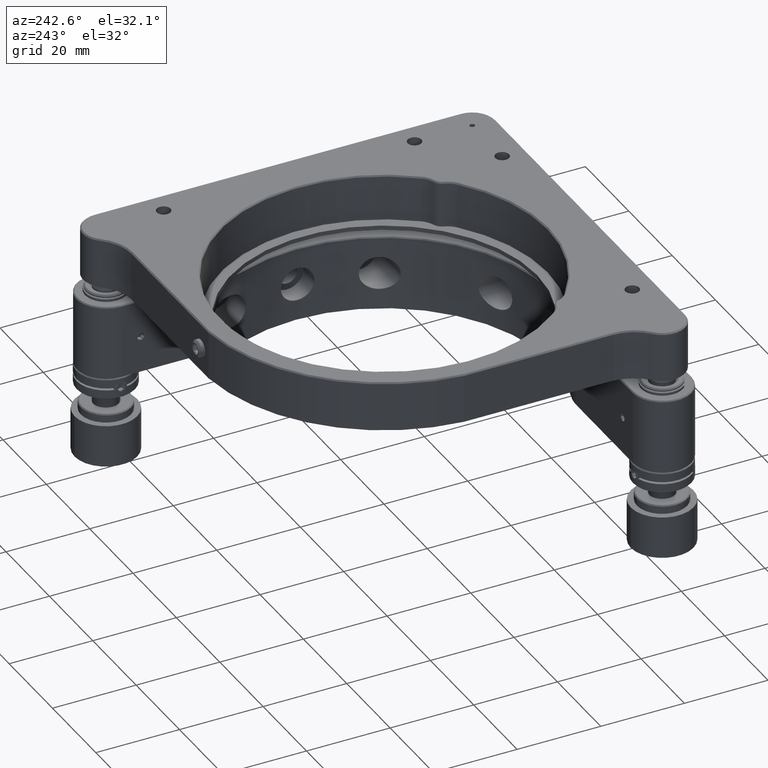
[diagram: clean part render]
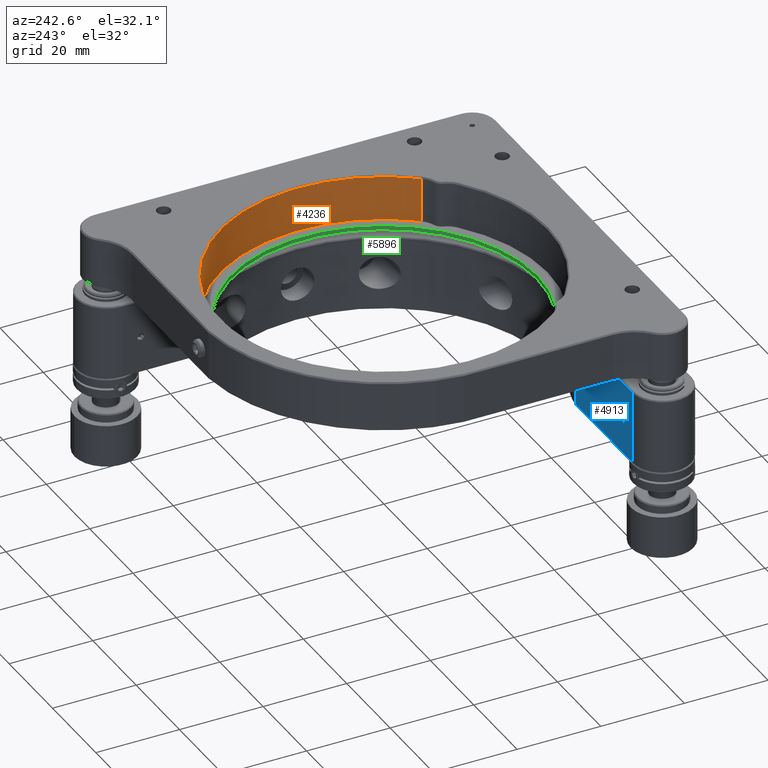
[diagram: same view with three faces highlighted in distinct colors, each labeled with its STEP entity id]
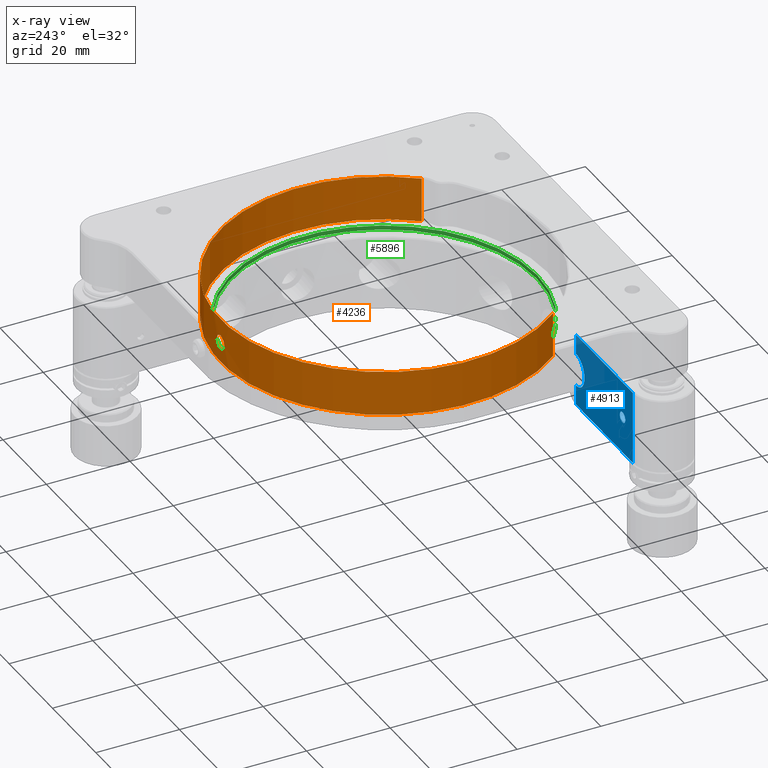
[diagram: x-ray of the same camera — body ghosted, the three highlighted faces saturated]
A machine part, auxiliary view with three faces highlighted in distinct colors.
The next image is the same camera in x-ray (body ghosted, the three faces saturated) — at least one of them is partly hidden behind the body in this view.
Their STEP definitions:

[orange] entity #4236 — the highlighted cylindrical surface (partial cylindrical patch) has radius 39.1 mm, axis along (0, -0, 1).
#164 = CARTESIAN_POINT ( 'NONE',  ( -1.090652803813126903, 39.08485988291836577, 20.23808376425229838 ) ) ;
#285 = CARTESIAN_POINT ( 'NONE',  ( 1.432023778977849382, 39.07381315439676683, 19.82193987471746155 ) ) ;
#418 = CARTESIAN_POINT ( 'NONE',  ( -1.639382301651451490, 39.06562259217468380, 18.77949631593761737 ) ) ;
#498 = EDGE_LOOP ( 'NONE', ( #5788, #20134, #4430, #11637 ) ) ;
#681 = CARTESIAN_POINT ( 'NONE',  ( 1.005747798732938403, 39.08716562293366081, 17.68280473272272246 ) ) ;
#1827 = AXIS2_PLACEMENT_3D ( 'NONE', #10360, #18515, #7836 ) ;
#2084 = DIRECTION ( 'NONE',  ( -1.137208903880104210E-16, 1.216571513026822848E-16, -1.000000000000000000 ) ) ;
#2165 = CARTESIAN_POINT ( 'NONE',  ( -1.597330593818252487, 39.06736461318129727, 18.56787934288382047 ) ) ;
#2249 = DIRECTION ( 'NONE',  ( 0.000000000000000000, -1.000000000000000000, -1.330989879266092409E-16 ) ) ;
#2422 = CARTESIAN_POINT ( 'NONE',  ( 1.483657054332974568, 39.07186286846511081, 19.72531056223667889 ) ) ;
#2548 = CARTESIAN_POINT ( 'NONE',  ( 0.7316481024828955793, 39.09328169242677831, 17.51241752772209281 ) ) ;
#2685 = CARTESIAN_POINT ( 'NONE',  ( 1.649852990802961550, 39.06517611799898759, 18.77894124580774360 ) ) ;
#2810 = VERTEX_POINT ( 'NONE', #13355 ) ;
#3832 = FACE_OUTER_BOUND ( 'NONE', #498, .T. ) ;
#4236 = ADVANCED_FACE ( 'NONE', ( #3832, #26119 ), #7963, .F. ) ;
#4292 = CARTESIAN_POINT ( 'NONE',  ( 0.8285636878634248248, 39.09132208010111498, 20.42620119362159414 ) ) ;
#4424 = CARTESIAN_POINT ( 'NONE',  ( 1.090628508497733629, 39.08486221933237204, 20.23821602182935564 ) ) ;
#4430 = ORIENTED_EDGE ( 'NONE', *, *, #24515, .F. ) ;
#4553 = CARTESIAN_POINT ( 'NONE',  ( -1.318937729075137621, 39.07804480382964840, 20.00979039005804694 ) ) ;
#4682 = CARTESIAN_POINT ( 'NONE',  ( -1.432023986924321868, 39.07381314669292749, 18.16862324067536960 ) ) ;
#5709 = LINE ( 'NONE', #20127, #22786 ) ;
#5788 = ORIENTED_EDGE ( 'NONE', *, *, #14563, .F. ) ;
#6176 = CARTESIAN_POINT ( 'NONE',  ( 1.312656535352403564, 39.07800531435126601, 20.00076096138525372 ) ) ;
#6303 = CARTESIAN_POINT ( 'NONE',  ( 0.1090096951036686329, 39.10000000000005826, 17.34528137423862049 ) ) ;
#6436 = CARTESIAN_POINT ( 'NONE',  ( 1.090652290418602455, 39.08485989737668120, 17.75247852893095413 ) ) ;
#6567 = CARTESIAN_POINT ( 'NONE',  ( -1.650072930156035289, 39.06516682839784238, 18.88879757512160396 ) ) ;
#6692 = CARTESIAN_POINT ( 'NONE',  ( -1.566208250513628109, 39.06864085145169696, 18.46502429098294584 ) ) ;
#7315 = B_SPLINE_CURVE_WITH_KNOTS ( 'NONE', 3,
 ( #16445, #6303, #10313, #14447, #20989, #2548, #16319, #681, #6436, #24584, #22714, #24716, #2685, #10838, #22587, #10570, #12568, #2422, #285, #6176, #18594, #4424, #20728, #4292, #12434, #18988, #8696, #20591, #14575, #16837, #20463, #10441, #18720, #8429, #164, #4553, #24980, #24461, #22976, #6567, #418, #2165, #6692, #16706, #4682, #16570, #14321, #8563, #24845, #10703, #14709, #22845, #12694, #14841 ),
 .UNSPECIFIED., .T., .F.,
 ( 4, 2, 2, 2, 2, 2, 2, 2, 2, 2, 2, 2, 2, 2, 2, 2, 2, 2, 2, 2, 2, 2, 2, 2, 2, 2, 4 ),
 ( 0.000000000000000000, 0.0003223846055380403869, 0.0006447692110760807737, 0.0009671538166141211606, 0.001289538422152161547, 0.001934307633228249043, 0.002579076844304336539, 0.002901461449842375299, 0.003223846055380414494, 0.003546230660918452821, 0.003868615266456491147, 0.004190999871994529474, 0.004513384477532568669, 0.005158153688608644455, 0.005480538294146683649, 0.005802922899684721976, 0.006125307505222759435, 0.006447692110760797762, 0.007092461321836874416, 0.007737230532912951070, 0.008059615138450989397, 0.008381999743989025989, 0.008704384349527064316, 0.009026768955065102643, 0.009349153560603140969, 0.009671538166141179296, 0.01031630737721725075 ),
 .UNSPECIFIED. ) ;
#7618 = CIRCLE ( 'NONE', #21266, 39.10000000000000142 ) ;
#7692 = CARTESIAN_POINT ( 'NONE',  ( 30.28482855053507095, -24.73133962535577979, -97.59621920333742651 ) ) ;
#7836 = DIRECTION ( 'NONE',  ( 0.000000000000000000, -1.000000000000000000, 0.000000000000000000 ) ) ;
#7963 = CYLINDRICAL_SURFACE ( 'NONE', #1827, 39.10000000000000142 ) ;
#8107 = VERTEX_POINT ( 'NONE', #18302 ) ;
#8429 = CARTESIAN_POINT ( 'NONE',  ( -1.005748386169342146, 39.08716560766049497, 20.30775756163237133 ) ) ;
#8563 = CARTESIAN_POINT ( 'NONE',  ( -1.090629031199502830, 39.08486220460459748, 17.75234719056131283 ) ) ;
#8696 = CARTESIAN_POINT ( 'NONE',  ( 0.2180179785798793957, 39.10000000711768564, 20.64528154290496431 ) ) ;
#9304 = VERTEX_POINT ( 'NONE', #13514 ) ;
#9483 = VERTEX_POINT ( 'NONE', #22688 ) ;
#10313 = CARTESIAN_POINT ( 'NONE',  ( 0.2161955159857403552, 39.09954446272902828, 17.35597800453118111 ) ) ;
#10360 = CARTESIAN_POINT ( 'NONE',  ( -9.961649663784587535E-15, 5.657141978799781164E-14, -97.59621920333742651 ) ) ;
#10441 = CARTESIAN_POINT ( 'NONE',  ( -0.7316489007202362505, 39.09328167728526893, 20.47814482253841817 ) ) ;
#10570 = CARTESIAN_POINT ( 'NONE',  ( 1.597330542835530220, 39.06736461527667359, 19.42268360918544801 ) ) ;
#10703 = CARTESIAN_POINT ( 'NONE',  ( -0.8285644144949129153, 39.09132206453286784, 17.56436197963191148 ) ) ;
#10838 = CARTESIAN_POINT ( 'NONE',  ( 1.650072930191804677, 39.06516682839631471, 19.10176522585928538 ) ) ;
#11260 = AXIS2_PLACEMENT_3D ( 'NONE', #16024, #18284, #2249 ) ;
#11637 = ORIENTED_EDGE ( 'NONE', *, *, #19659, .F. ) ;
#12434 = CARTESIAN_POINT ( 'NONE',  ( 0.7321883344140754923, 39.09327169993473206, 20.47788336941540877 ) ) ;
#12568 = CARTESIAN_POINT ( 'NONE',  ( 1.566208169825757501, 39.06864085472881243, 19.52553870702351446 ) ) ;
#12694 = CARTESIAN_POINT ( 'NONE',  ( -0.2180193902073069012, 39.10000000000004405, 17.34528137423860628 ) ) ;
#13355 = CARTESIAN_POINT ( 'NONE',  ( 9.004883412442314032E-15, 39.10000000000004405, 17.34528137423862049 ) ) ;
#13514 = CARTESIAN_POINT ( 'NONE',  ( 30.28482855053508516, -24.73133962535578689, 24.69528137423851533 ) ) ;
#14321 = CARTESIAN_POINT ( 'NONE',  ( -1.244511494963802534, 39.08026504996515627, 17.90645255043218853 ) ) ;
#14447 = CARTESIAN_POINT ( 'NONE',  ( 0.4270693338964202668, 39.09780977852980044, 17.39788730165922814 ) ) ;
#14563 = EDGE_CURVE ( 'NONE', #23699, #9304, #7618, .T. ) ;
#14575 = CARTESIAN_POINT ( 'NONE',  ( -0.2161966598196375100, 39.09954445623314001, 20.63458458978301380 ) ) ;
#14709 = CARTESIAN_POINT ( 'NONE',  ( -0.7321891463711474035, 39.09327168455912016, 17.51267978336384346 ) ) ;
#14841 = CARTESIAN_POINT ( 'NONE',  ( 8.836247705756861137E-15, 39.10000000000005116, 17.34528137423861693 ) ) ;
#15836 = DIRECTION ( 'NONE',  ( -1.137208903880104210E-16, 1.216571513026822848E-16, -1.000000000000000000 ) ) ;
#16024 = CARTESIAN_POINT ( 'NONE',  ( 2.728635141631537692E-15, 4.299551571813828762E-14, 13.99528137423859597 ) ) ;
#16319 = CARTESIAN_POINT ( 'NONE',  ( 0.8264084201780731442, 39.09136853823824254, 17.56308980456655178 ) ) ;
#16445 = CARTESIAN_POINT ( 'NONE',  ( 8.836247705756861137E-15, 39.10000000000005116, 17.34528137423861693 ) ) ;
#16570 = CARTESIAN_POINT ( 'NONE',  ( -1.312656851573832162, 39.07800530364638547, 17.98980220541950459 ) ) ;
#16706 = CARTESIAN_POINT ( 'NONE',  ( -1.483657215311926958, 39.07186286230987804, 18.26525252153988177 ) ) ;
#16837 = CARTESIAN_POINT ( 'NONE',  ( -0.4270703507123395082, 39.09780976725180324, 20.59267517157032401 ) ) ;
#17250 = ORIENTED_EDGE ( 'NONE', *, *, #17597, .F. ) ;
#17597 = EDGE_CURVE ( 'NONE', #2810, #2810, #7315, .T. ) ;
#17626 = EDGE_LOOP ( 'NONE', ( #17250 ) ) ;
#17797 = DIRECTION ( 'NONE',  ( -1.137208903880104210E-16, 1.216571513026822848E-16, -1.000000000000000000 ) ) ;
#18284 = DIRECTION ( 'NONE',  ( 1.137208903880104210E-16, -1.216571513026822848E-16, 1.000000000000000000 ) ) ;
#18302 = CARTESIAN_POINT ( 'NONE',  ( -30.28482855053508516, -24.73133962535577979, 13.99528137423860308 ) ) ;
#18515 = DIRECTION ( 'NONE',  ( 1.137208903880104210E-16, -1.216571513026822848E-16, 1.000000000000000000 ) ) ;
#18594 = CARTESIAN_POINT ( 'NONE',  ( 1.244511116689074104, 39.08026506215356477, 20.08411063641282368 ) ) ;
#18720 = CARTESIAN_POINT ( 'NONE',  ( -0.8264091452717302611, 39.09136852275153728, 20.42747252187538720 ) ) ;
#18817 = VECTOR ( 'NONE', #15836, 1000.000000000000000 ) ;
#18988 = CARTESIAN_POINT ( 'NONE',  ( 0.4323481356334845649, 39.09812070851333488, 20.60226887332855483 ) ) ;
#19364 = CIRCLE ( 'NONE', #11260, 39.10000000000000142 ) ;
#19659 = EDGE_CURVE ( 'NONE', #9304, #9483, #25979, .T. ) ;
#19807 = CARTESIAN_POINT ( 'NONE',  ( 3.945448668783242489E-15, 4.169378419919960010E-14, 24.69528137423852954 ) ) ;
#20127 = CARTESIAN_POINT ( 'NONE',  ( -30.28482855053508871, -24.73133962535578334, 6.924213562373124020 ) ) ;
#20134 = ORIENTED_EDGE ( 'NONE', *, *, #25437, .T. ) ;
#20463 = CARTESIAN_POINT ( 'NONE',  ( -0.5318509277423573156, 39.09651029189373617, 20.56095334208127312 ) ) ;
#20591 = CARTESIAN_POINT ( 'NONE',  ( -0.1090109040310884014, 39.09999999644120550, 20.64528128990468403 ) ) ;
#20728 = CARTESIAN_POINT ( 'NONE',  ( 1.007173403542908297, 39.08712807933378741, 20.30663603623691316 ) ) ;
#20989 = CARTESIAN_POINT ( 'NONE',  ( 0.5318499712658928402, 39.09651030510732994, 17.42960907735236020 ) ) ;
#21266 = AXIS2_PLACEMENT_3D ( 'NONE', #19807, #17797, #23938 ) ;
#22587 = CARTESIAN_POINT ( 'NONE',  ( 1.639382291081294740, 39.06562259262912562, 19.21106653870048575 ) ) ;
#22688 = CARTESIAN_POINT ( 'NONE',  ( 30.28482855053508516, -24.73133962535579400, 13.99528137423859597 ) ) ;
#22714 = CARTESIAN_POINT ( 'NONE',  ( 1.441869888074814199, 39.07349224315100145, 18.16480460196883584 ) ) ;
#22786 = VECTOR ( 'NONE', #2084, 1000.000000000000000 ) ;
#22845 = CARTESIAN_POINT ( 'NONE',  ( -0.4323491450478461617, 39.09812069667837164, 17.38829415895373742 ) ) ;
#22976 = CARTESIAN_POINT ( 'NONE',  ( -1.649852990874443481, 39.06517611799598910, 19.21162139766306254 ) ) ;
#23699 = VERTEX_POINT ( 'NONE', #25284 ) ;
#23938 = DIRECTION ( 'NONE',  ( 0.000000000000000000, -1.000000000000000000, -8.873265861773948569E-17 ) ) ;
#24461 = CARTESIAN_POINT ( 'NONE',  ( -1.606485114935409575, 39.06707040990335855, 19.42873953116341568 ) ) ;
#24515 = EDGE_CURVE ( 'NONE', #9483, #8107, #19364, .T. ) ;
#24584 = CARTESIAN_POINT ( 'NONE',  ( 1.318937419265191480, 39.07804481481498016, 17.98077193235910443 ) ) ;
#24716 = CARTESIAN_POINT ( 'NONE',  ( 1.606485072495432487, 39.06707041181316953, 18.56182300799583018 ) ) ;
#24845 = CARTESIAN_POINT ( 'NONE',  ( -1.007173984102293085, 39.08712806420741970, 17.68392716252600039 ) ) ;
#24980 = CARTESIAN_POINT ( 'NONE',  ( -1.441870086588277200, 39.07349223566096441, 19.82575777469536149 ) ) ;
#25284 = CARTESIAN_POINT ( 'NONE',  ( -30.28482855054568645, -24.73133962535725061, 24.69528137424129000 ) ) ;
#25437 = EDGE_CURVE ( 'NONE', #23699, #8107, #5709, .T. ) ;
#25979 = LINE ( 'NONE', #7692, #18817 ) ;
#26119 = FACE_BOUND ( 'NONE', #17626, .T. ) ;

[blue] entity #4913 — the highlighted planar face has unit normal (0, -1, 0).
#141 = AXIS2_PLACEMENT_3D ( 'NONE', #11403, #21969, #1399 ) ;
#204 = EDGE_CURVE ( 'NONE', #24092, #18370, #7320, .T. ) ;
#307 = CARTESIAN_POINT ( 'NONE',  ( -17.59999999999999787, -36.80000000000001137, 3.998749804626437587 ) ) ;
#852 = CARTESIAN_POINT ( 'NONE',  ( -50.79999999999999005, -36.80000000000000426, 8.749999999999998224 ) ) ;
#1090 = DIRECTION ( 'NONE',  ( 1.000000000000000000, 0.000000000000000000, 0.000000000000000000 ) ) ;
#1255 = FACE_OUTER_BOUND ( 'NONE', #5224, .T. ) ;
#1399 = DIRECTION ( 'NONE',  ( 0.000000000000000000, -0.000000000000000000, -1.000000000000000000 ) ) ;
#1814 = VERTEX_POINT ( 'NONE', #13616 ) ;
#2006 = ORIENTED_EDGE ( 'NONE', *, *, #204, .F. ) ;
#2701 = CARTESIAN_POINT ( 'NONE',  ( -17.59999999999999076, -36.80000000000001137, -3.998749804626434479 ) ) ;
#3110 = EDGE_CURVE ( 'NONE', #18370, #24215, #13132, .T. ) ;
#4017 = CIRCLE ( 'NONE', #18946, 1.249999999999987121 ) ;
#4913 = ADVANCED_FACE ( 'NONE', ( #1255, #9393 ), #19689, .F. ) ;
#4967 = VECTOR ( 'NONE', #5938, 1000.000000000000000 ) ;
#5224 = EDGE_LOOP ( 'NONE', ( #13129, #2006, #17788, #17004, #19543, #19823 ) ) ;
#5938 = DIRECTION ( 'NONE',  ( -0.000000000000000000, 0.000000000000000000, 1.000000000000000000 ) ) ;
#6432 = CARTESIAN_POINT ( 'NONE',  ( -17.59999999999999076, -36.80000000000000426, -8.750000000000012434 ) ) ;
#7320 = LINE ( 'NONE', #21889, #22658 ) ;
#8996 = DIRECTION ( 'NONE',  ( -1.000000000000000000, -0.000000000000000000, 0.000000000000000000 ) ) ;
#9280 = CARTESIAN_POINT ( 'NONE',  ( -17.59999999999997655, -36.80000000000000426, 8.749999999999998224 ) ) ;
#9352 = DIRECTION ( 'NONE',  ( -0.000000000000000000, -0.000000000000000000, -1.000000000000000000 ) ) ;
#9393 = FACE_BOUND ( 'NONE', #16811, .T. ) ;
#9696 = VECTOR ( 'NONE', #9352, 1000.000000000000000 ) ;
#10012 = CARTESIAN_POINT ( 'NONE',  ( -39.04999999999999005, -36.80000000000000426, 1.249999999999987121 ) ) ;
#11241 = EDGE_CURVE ( 'NONE', #24215, #1814, #13641, .T. ) ;
#11403 = CARTESIAN_POINT ( 'NONE',  ( -50.79999999999999005, -36.80000000000000426, -9.000000000000001776 ) ) ;
#12891 = AXIS2_PLACEMENT_3D ( 'NONE', #16016, #24162, #20026 ) ;
#13013 = EDGE_CURVE ( 'NONE', #15949, #21803, #20232, .T. ) ;
#13129 = ORIENTED_EDGE ( 'NONE', *, *, #3110, .F. ) ;
#13132 = LINE ( 'NONE', #852, #18488 ) ;
#13616 = CARTESIAN_POINT ( 'NONE',  ( -43.79999999999999005, -36.79999999999277094, -8.749999999990915711 ) ) ;
#13641 = LINE ( 'NONE', #19512, #9696 ) ;
#13697 = ORIENTED_EDGE ( 'NONE', *, *, #25738, .T. ) ;
#15372 = LINE ( 'NONE', #19384, #20085 ) ;
#15612 = DIRECTION ( 'NONE',  ( -0.000000000000000000, -1.000000000000000000, -0.000000000000000000 ) ) ;
#15740 = DIRECTION ( 'NONE',  ( -0.000000000000000000, 0.000000000000000000, 1.000000000000000000 ) ) ;
#15903 = CIRCLE ( 'NONE', #12891, 3.999999999999994671 ) ;
#15949 = VERTEX_POINT ( 'NONE', #6432 ) ;
#16016 = CARTESIAN_POINT ( 'NONE',  ( -17.50000000000000000, -36.80000000000000426, 2.143131898507868248E-15 ) ) ;
#16086 = CARTESIAN_POINT ( 'NONE',  ( -17.59999999999999076, -36.80000000000000426, -9.000000000000001776 ) ) ;
#16811 = EDGE_LOOP ( 'NONE', ( #13697 ) ) ;
#17004 = ORIENTED_EDGE ( 'NONE', *, *, #13013, .F. ) ;
#17615 = CARTESIAN_POINT ( 'NONE',  ( -39.04999999999999005, -36.80000000000000426, 0.000000000000000000 ) ) ;
#17754 = DIRECTION ( 'NONE',  ( 0.000000000000000000, 0.000000000000000000, 1.000000000000000000 ) ) ;
#17788 = ORIENTED_EDGE ( 'NONE', *, *, #22732, .F. ) ;
#18370 = VERTEX_POINT ( 'NONE', #9280 ) ;
#18488 = VECTOR ( 'NONE', #8996, 1000.000000000000000 ) ;
#18664 = EDGE_CURVE ( 'NONE', #1814, #15949, #15372, .T. ) ;
#18946 = AXIS2_PLACEMENT_3D ( 'NONE', #17615, #15612, #17754 ) ;
#19384 = CARTESIAN_POINT ( 'NONE',  ( -50.79999999999999005, -36.80000000000000426, -8.750000000000012434 ) ) ;
#19512 = CARTESIAN_POINT ( 'NONE',  ( -43.79999999999999005, -36.80000000000000426, -9.000000000000001776 ) ) ;
#19543 = ORIENTED_EDGE ( 'NONE', *, *, #18664, .F. ) ;
#19689 = PLANE ( 'NONE',  #141 ) ;
#19823 = ORIENTED_EDGE ( 'NONE', *, *, #11241, .F. ) ;
#20026 = DIRECTION ( 'NONE',  ( 0.000000000000000000, 0.000000000000000000, 1.000000000000000000 ) ) ;
#20085 = VECTOR ( 'NONE', #1090, 1000.000000000000000 ) ;
#20232 = LINE ( 'NONE', #16086, #4967 ) ;
#20294 = VERTEX_POINT ( 'NONE', #10012 ) ;
#21803 = VERTEX_POINT ( 'NONE', #2701 ) ;
#21889 = CARTESIAN_POINT ( 'NONE',  ( -17.59999999999999076, -36.80000000000000426, -9.000000000000001776 ) ) ;
#21969 = DIRECTION ( 'NONE',  ( 0.000000000000000000, -1.000000000000000000, 0.000000000000000000 ) ) ;
#22658 = VECTOR ( 'NONE', #15740, 1000.000000000000000 ) ;
#22732 = EDGE_CURVE ( 'NONE', #21803, #24092, #15903, .T. ) ;
#22998 = CARTESIAN_POINT ( 'NONE',  ( -43.79999999999998295, -36.79999999998329230, 8.749999999972715159 ) ) ;
#24092 = VERTEX_POINT ( 'NONE', #307 ) ;
#24162 = DIRECTION ( 'NONE',  ( 0.000000000000000000, 1.000000000000000000, 0.000000000000000000 ) ) ;
#24215 = VERTEX_POINT ( 'NONE', #22998 ) ;
#25738 = EDGE_CURVE ( 'NONE', #20294, #20294, #4017, .T. ) ;

[green] entity #5896 — the highlighted cylindrical surface (bore or boss wall) has radius 36.6 mm, axis along (0, -0, 1).
#440 = CYLINDRICAL_SURFACE ( 'NONE', #25277, 36.60000000000000142 ) ;
#2002 = EDGE_LOOP ( 'NONE', ( #3516 ) ) ;
#2176 = AXIS2_PLACEMENT_3D ( 'NONE', #11032, #5162, #15578 ) ;
#3516 = ORIENTED_EDGE ( 'NONE', *, *, #10636, .F. ) ;
#5162 = DIRECTION ( 'NONE',  ( -1.137208903880104210E-16, 1.216571513026822848E-16, -1.000000000000000000 ) ) ;
#5873 = CARTESIAN_POINT ( 'NONE',  ( 2.614914251243530106E-15, -36.59999999999995879, 12.99528137423859953 ) ) ;
#5896 = ADVANCED_FACE ( 'NONE', ( #13119, #18741 ), #440, .F. ) ;
#8803 = AXIS2_PLACEMENT_3D ( 'NONE', #23276, #11120, #19271 ) ;
#10636 = EDGE_CURVE ( 'NONE', #17931, #17931, #21180, .T. ) ;
#11032 = CARTESIAN_POINT ( 'NONE',  ( 2.614914251243530106E-15, 4.311717286944097170E-14, 12.99528137423860485 ) ) ;
#11120 = DIRECTION ( 'NONE',  ( -1.137208903880104210E-16, 1.216571513026822848E-16, -1.000000000000000000 ) ) ;
#13119 = FACE_OUTER_BOUND ( 'NONE', #26182, .T. ) ;
#14736 = DIRECTION ( 'NONE',  ( 0.000000000000000000, -1.000000000000000000, -1.421904488505579408E-16 ) ) ;
#15578 = DIRECTION ( 'NONE',  ( 0.000000000000000000, -1.000000000000000000, -1.421904488505579408E-16 ) ) ;
#15656 = CARTESIAN_POINT ( 'NONE',  ( 2.728635141631540453E-15, -36.59999999999995879, 13.99528137423859775 ) ) ;
#16727 = DIRECTION ( 'NONE',  ( 1.137208903880104210E-16, -1.216571513026822848E-16, 1.000000000000000000 ) ) ;
#17784 = ORIENTED_EDGE ( 'NONE', *, *, #21371, .T. ) ;
#17931 = VERTEX_POINT ( 'NONE', #15656 ) ;
#18741 = FACE_OUTER_BOUND ( 'NONE', #2002, .T. ) ;
#19271 = DIRECTION ( 'NONE',  ( 0.000000000000000000, -1.000000000000000000, -1.421904488505579408E-16 ) ) ;
#21180 = CIRCLE ( 'NONE', #8803, 36.60000000000000142 ) ;
#21371 = EDGE_CURVE ( 'NONE', #25896, #25896, #21795, .T. ) ;
#21795 = CIRCLE ( 'NONE', #2176, 36.60000000000000142 ) ;
#23268 = CARTESIAN_POINT ( 'NONE',  ( 2.614914251243530106E-15, 4.311717286944097170E-14, 12.99528137423860485 ) ) ;
#23276 = CARTESIAN_POINT ( 'NONE',  ( 2.728635141631540453E-15, 4.299551571813829393E-14, 13.99528137423860308 ) ) ;
#25277 = AXIS2_PLACEMENT_3D ( 'NONE', #23268, #16727, #14736 ) ;
#25896 = VERTEX_POINT ( 'NONE', #5873 ) ;
#26182 = EDGE_LOOP ( 'NONE', ( #17784 ) ) ;